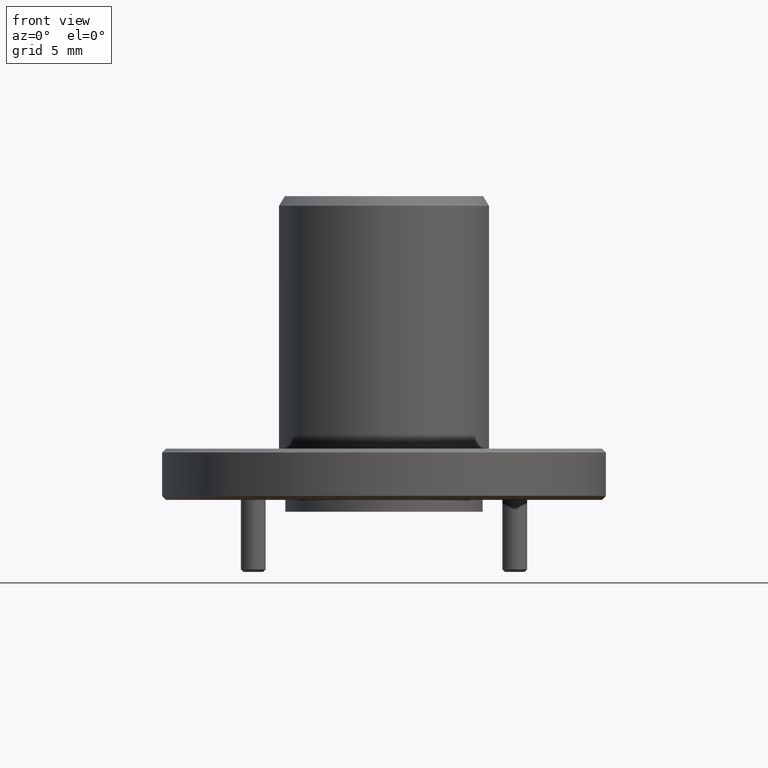
[diagram: clean part render]
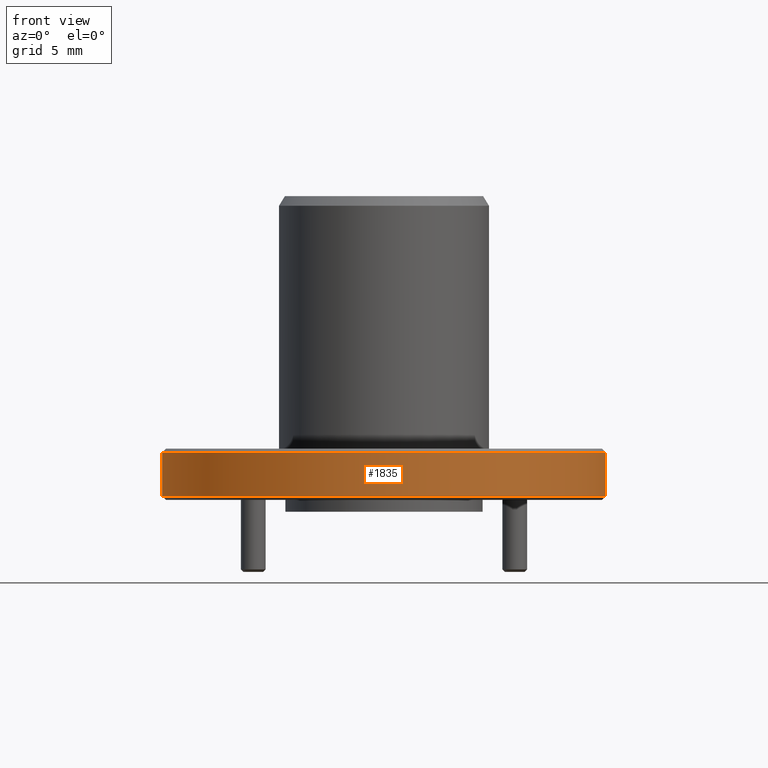
[diagram: same view with one face highlighted and labeled with its STEP entity id]
A machine part, front view. The second image highlights one B-rep face of the part: STEP entity #1835.
In plain terms, the highlighted cylindrical surface (partial cylindrical patch) has radius 14.2875 mm, axis along (-0, -0, 1).
Its self-contained STEP definition (entity closure, byte-faithful):
#131 = AXIS2_PLACEMENT_3D ( 'NONE', #1460, #1782, #667 ) ;
#209 = EDGE_CURVE ( 'NONE', #1084, #1550, #1631, .T. ) ;
#221 = CARTESIAN_POINT ( 'NONE',  ( 0.05127403736761039500, 0.5322466351666983500, 4.129873547652602300 ) ) ;
#252 = EDGE_CURVE ( 'NONE', #1864, #886, #842, .T. ) ;
#291 = ORIENTED_EDGE ( 'NONE', *, *, #1716, .T. ) ;
#389 = LINE ( 'NONE', #1621, #744 ) ;
#516 = VECTOR ( 'NONE', #1520, 39.37007874015748100 ) ;
#535 = DIRECTION ( 'NONE',  ( 0.0000000000000000000, 0.0000000000000000000, -1.000000000000000000 ) ) ;
#667 = DIRECTION ( 'NONE',  ( 1.000000000000000000, 0.0000000000000000000, 0.0000000000000000000 ) ) ;
#682 = DIRECTION ( 'NONE',  ( -1.000000000000000000, 0.0000000000000000000, 0.0000000000000000000 ) ) ;
#724 = DIRECTION ( 'NONE',  ( 1.000000000000000000, 0.0000000000000000000, 0.0000000000000000000 ) ) ;
#744 = VECTOR ( 'NONE', #1650, 39.37007874015748100 ) ;
#761 = ORIENTED_EDGE ( 'NONE', *, *, #209, .T. ) ;
#795 = AXIS2_PLACEMENT_3D ( 'NONE', #221, #1028, #724 ) ;
#842 = CIRCLE ( 'NONE', #2046, 0.5625000000000000000 ) ;
#856 = CARTESIAN_POINT ( 'NONE',  ( 0.05127403736761039500, 0.5322466351666983500, 0.4453271406262706600 ) ) ;
#863 = EDGE_LOOP ( 'NONE', ( #1396, #761, #291, #2040 ) ) ;
#886 = VERTEX_POINT ( 'NONE', #1340 ) ;
#1028 = DIRECTION ( 'NONE',  ( -0.0000000000000000000, -0.0000000000000000000, 1.000000000000000000 ) ) ;
#1084 = VERTEX_POINT ( 'NONE', #1838 ) ;
#1262 = CARTESIAN_POINT ( 'NONE',  ( 0.6137740373676103800, 0.5322466351666983500, 0.3353271406262704500 ) ) ;
#1340 = CARTESIAN_POINT ( 'NONE',  ( -0.5112259626323896200, 0.5322466351666983500, 0.4453271406262706600 ) ) ;
#1363 = LINE ( 'NONE', #1983, #516 ) ;
#1396 = ORIENTED_EDGE ( 'NONE', *, *, #1667, .F. ) ;
#1460 = CARTESIAN_POINT ( 'NONE',  ( 0.05127403736761039500, 0.5322466351666983500, 0.3353271406262704500 ) ) ;
#1493 = CYLINDRICAL_SURFACE ( 'NONE', #795, 0.5625000000000000000 ) ;
#1520 = DIRECTION ( 'NONE',  ( -0.0000000000000000000, -0.0000000000000000000, 1.000000000000000000 ) ) ;
#1550 = VERTEX_POINT ( 'NONE', #1262 ) ;
#1621 = CARTESIAN_POINT ( 'NONE',  ( -0.5112259626323896200, 0.5322466351666983500, 4.129873547652602300 ) ) ;
#1631 = CIRCLE ( 'NONE', #131, 0.5625000000000000000 ) ;
#1650 = DIRECTION ( 'NONE',  ( -0.0000000000000000000, -0.0000000000000000000, 1.000000000000000000 ) ) ;
#1664 = FACE_OUTER_BOUND ( 'NONE', #863, .T. ) ;
#1667 = EDGE_CURVE ( 'NONE', #1084, #886, #389, .T. ) ;
#1716 = EDGE_CURVE ( 'NONE', #1550, #1864, #1363, .T. ) ;
#1782 = DIRECTION ( 'NONE',  ( -0.0000000000000000000, -0.0000000000000000000, 1.000000000000000000 ) ) ;
#1835 = ADVANCED_FACE ( 'NONE', ( #1664 ), #1493, .T. ) ;
#1838 = CARTESIAN_POINT ( 'NONE',  ( -0.5112259626323896200, 0.5322466351666983500, 0.3353271406262704500 ) ) ;
#1864 = VERTEX_POINT ( 'NONE', #2023 ) ;
#1983 = CARTESIAN_POINT ( 'NONE',  ( 0.6137740373676103800, 0.5322466351666983500, 4.129873547652602300 ) ) ;
#2023 = CARTESIAN_POINT ( 'NONE',  ( 0.6137740373676103800, 0.5322466351666983500, 0.4453271406262706600 ) ) ;
#2040 = ORIENTED_EDGE ( 'NONE', *, *, #252, .T. ) ;
#2046 = AXIS2_PLACEMENT_3D ( 'NONE', #856, #535, #682 ) ;